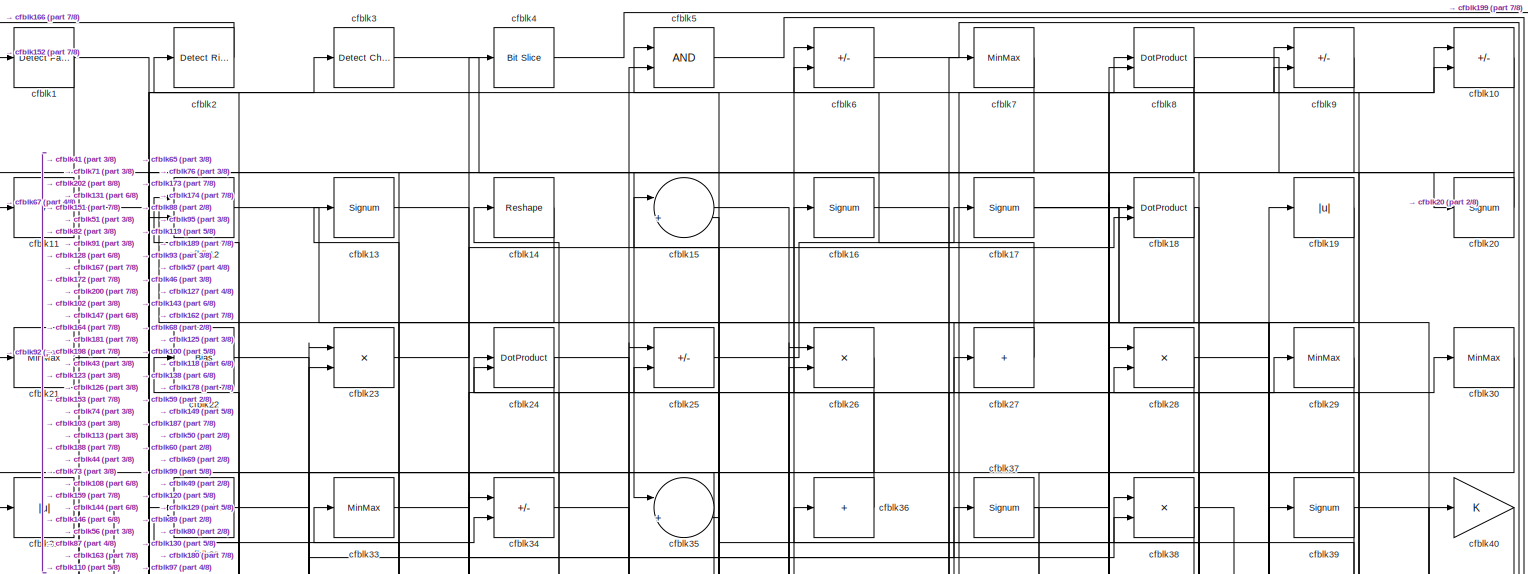
[diagram: root canvas - part 1/8, full width, top band]
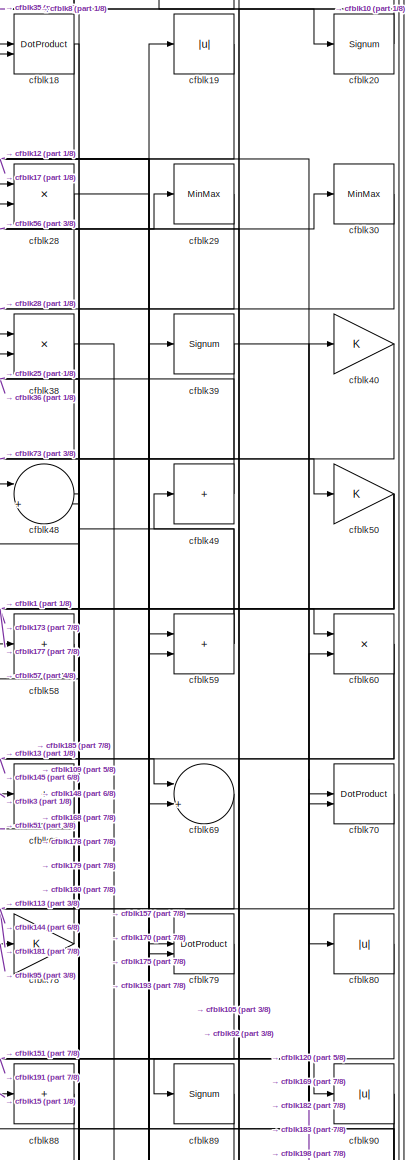
[diagram: root canvas - part 2/8, top right region]
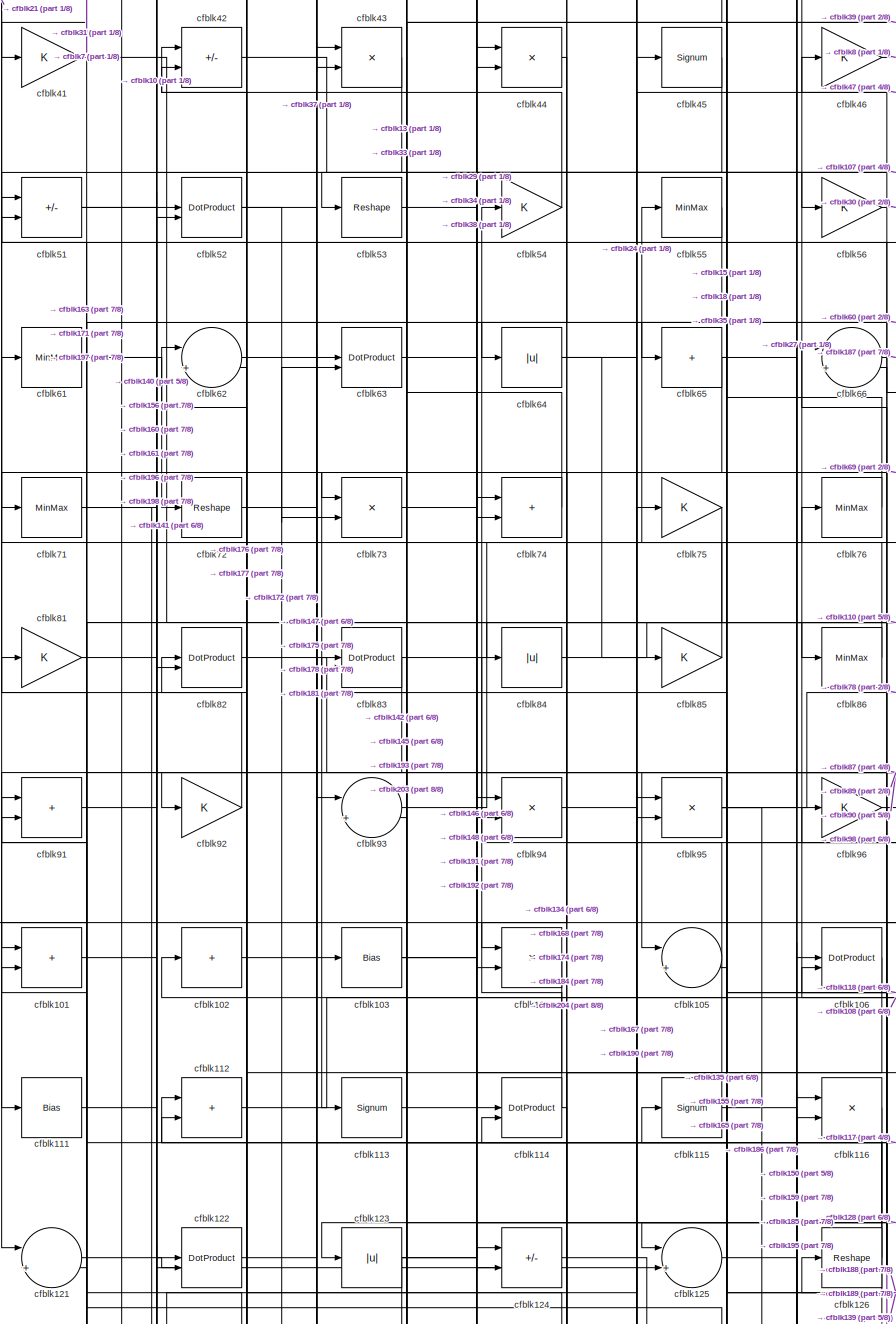
[diagram: root canvas - part 3/8, middle left region]
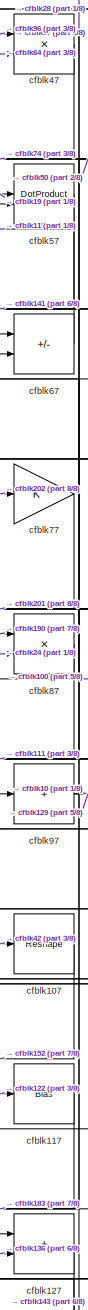
[diagram: root canvas - part 4/8, central region]
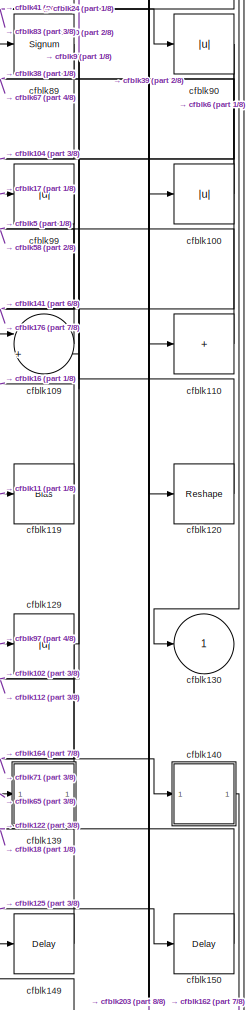
[diagram: root canvas - part 5/8, middle right region]
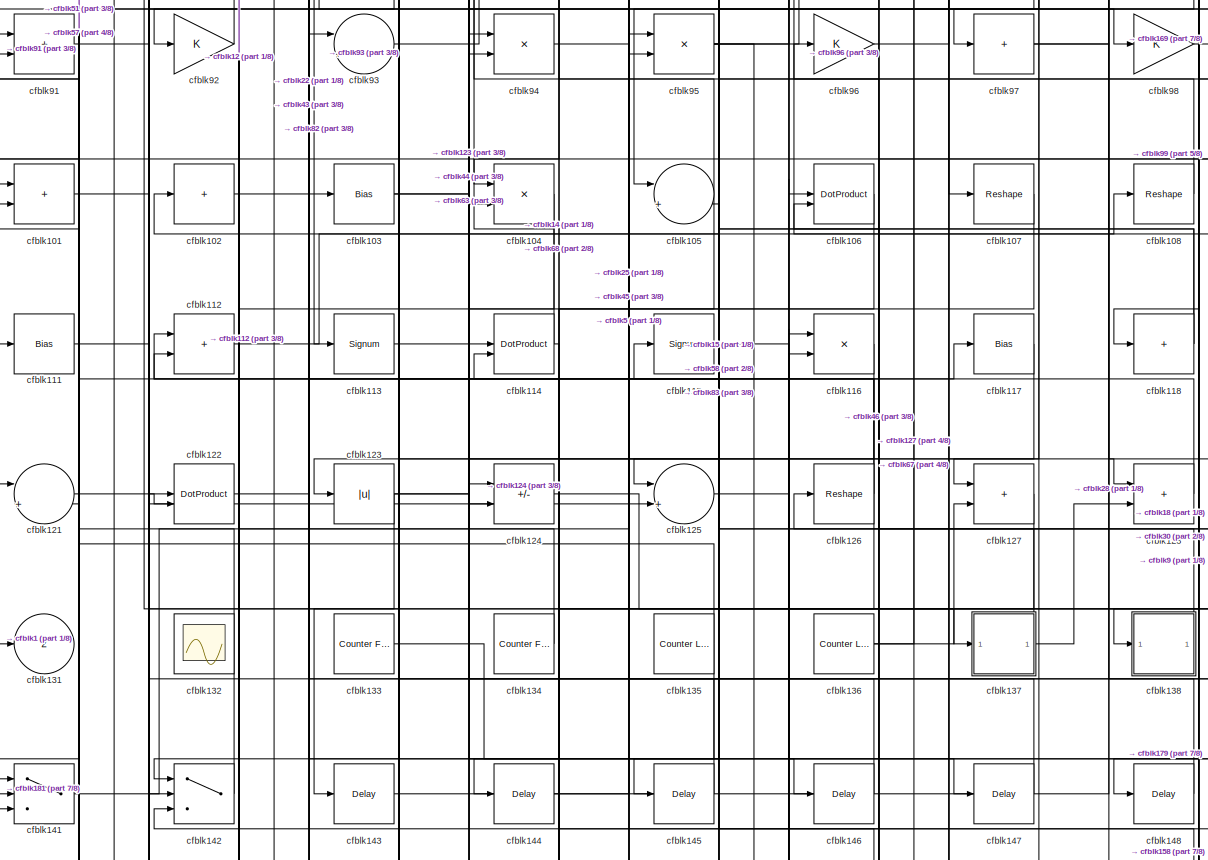
[diagram: root canvas - part 6/8, full width, middle band]
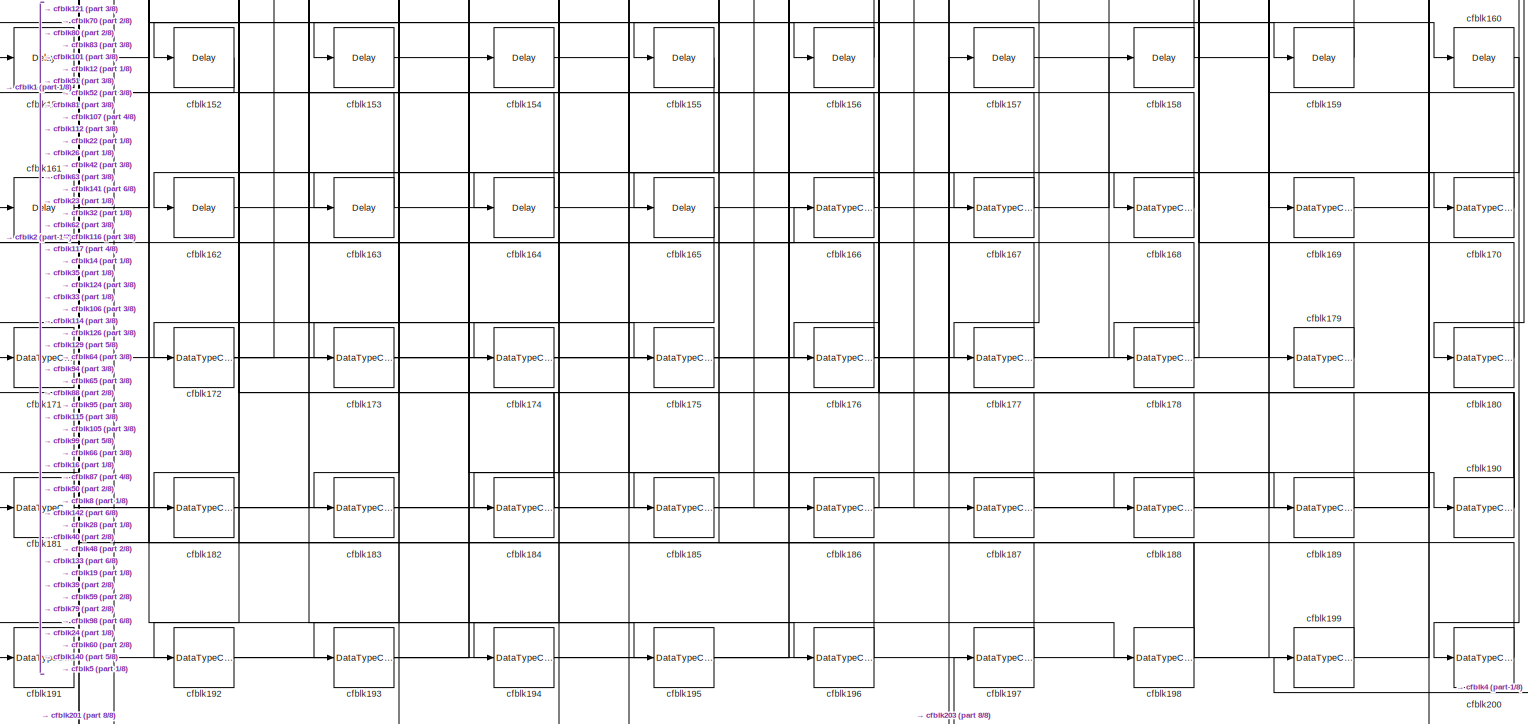
[diagram: root canvas - part 7/8, full width, bottom band]
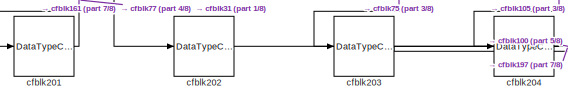
[diagram: root canvas - part 8/8, bottom left region]
MODEL slx_bb9fa285c34d
KIND model
CONFIG AbsTol = auto
CONFIG EnableMultiTasking = off
CONFIG FixedStep = auto
CONFIG MaxStep = auto
CONFIG MinStep = auto
CONFIG RelTol = 1e-3
CONFIG SampleTimeConstraint = Unconstrained
CONFIG SolverName = VariableStepAuto
CONFIG StartTime = 0.0
CONFIG StopTime = 10.0
BLOCK [Reference] cfblk1  REF=hdlsllib/Logic and Bit
Operations/Detect Fall
Nonpositive
  SourceBlock = hdlsllib/Logic and Bit\nOperations/Detect Fall\nNonpositive
  SourceType = Detect Fall Nonpositive
BLOCK [Sum] cfblk10
  IconShape = rectangular
  Inputs = +-
BLOCK [Abs] cfblk100
  SaturateOnIntegerOverflow = off
BLOCK [Sum] cfblk101
  IconShape = rectangular
BLOCK [Sum] cfblk102
  IconShape = rectangular
  Inputs = +
BLOCK [Bias] cfblk103
  Bias = 0.0
  SaturateOnIntegerOverflow = off
BLOCK [Product] cfblk104
  Inputs = */
  RndMeth = Zero
  SaturateOnIntegerOverflow = on
BLOCK [Sum] cfblk105
  Inputs = |++
BLOCK [DotProduct] cfblk106
  OutDataTypeStr = Inherit: Inherit via internal rule
BLOCK [Reshape] cfblk107
BLOCK [Reshape] cfblk108
BLOCK [Sum] cfblk109
  Inputs = |++
BLOCK [Sum] cfblk11
  IconShape = rectangular
  Inputs = +
BLOCK [Sum] cfblk110
  IconShape = rectangular
  Inputs = +
BLOCK [Bias] cfblk111
  Bias = 0.0
  SaturateOnIntegerOverflow = off
BLOCK [Sum] cfblk112
  IconShape = rectangular
BLOCK [Signum] cfblk113
BLOCK [DotProduct] cfblk114
  OutDataTypeStr = Inherit: Inherit via internal rule
BLOCK [Signum] cfblk115
BLOCK [Product] cfblk116
  Inputs = */
  RndMeth = Zero
  SaturateOnIntegerOverflow = on
BLOCK [Bias] cfblk117
  Bias = 0.0
  SaturateOnIntegerOverflow = off
BLOCK [Sum] cfblk118
  IconShape = rectangular
  Inputs = +
BLOCK [Bias] cfblk119
  Bias = 0.0
  SaturateOnIntegerOverflow = off
BLOCK [Product] cfblk12
  Inputs = */
  RndMeth = Zero
  SaturateOnIntegerOverflow = on
BLOCK [Reshape] cfblk120
BLOCK [Sum] cfblk121
  Inputs = |++
BLOCK [DotProduct] cfblk122
  OutDataTypeStr = Inherit: Inherit via internal rule
BLOCK [Abs] cfblk123
  SaturateOnIntegerOverflow = off
BLOCK [Sum] cfblk124
  IconShape = rectangular
  Inputs = +-
BLOCK [Sum] cfblk125
  Inputs = |++
BLOCK [Reshape] cfblk126
BLOCK [Sum] cfblk127
  IconShape = rectangular
BLOCK [Sum] cfblk128
  IconShape = rectangular
BLOCK [Abs] cfblk129
  SaturateOnIntegerOverflow = off
BLOCK [Signum] cfblk13
BLOCK [Outport] cfblk130
  VectorParamsAs1DForOutWhenUnconnected = off
BLOCK [Outport] cfblk131
  Port = 2
  VectorParamsAs1DForOutWhenUnconnected = off
BLOCK [Scope] cfblk132
  Floating = on
  NumInputPorts = 1
  ScopeSpecificationString = Simulink.scopes.TimeScopeBlockCfg('CurrentConfiguration', extmgr.ConfigurationSet(extmgr.Configuration('Core','General UI',true,'FigureColor',[0.156862745098039 0.156862745098039 0.156862745098039]),extmgr.Configuration('Core','Source UI',true),extmgr.Configuration('Sources','WiredSimulink',true,'DataLoggingVariableName','ScopeData1','DataLoggingSaveFormat','StructureWithTime','DataLoggingLimitDat...<+2713ch>
BLOCK [Reference] cfblk133  REF=hdlsllib/Sources/Counter
Free-Running
  SourceBlock = hdlsllib/Sources/Counter\nFree-Running
  SourceType = Counter Free-Running
BLOCK [Reference] cfblk134  REF=hdlsllib/Sources/Counter
Free-Running
  SourceBlock = hdlsllib/Sources/Counter\nFree-Running
  SourceType = Counter Free-Running
BLOCK [Reference] cfblk135  REF=hdlsllib/Sources/Counter
Limited
  SourceBlock = hdlsllib/Sources/Counter\nLimited
  SourceType = Counter Limited
BLOCK [Reference] cfblk136  REF=hdlsllib/Sources/Counter
Limited
  SourceBlock = hdlsllib/Sources/Counter\nLimited
  SourceType = Counter Limited
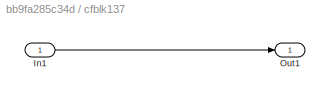
BLOCK [SubSystem] cfblk137
  LibrarySourceBlock = hdlsllib/Ports &\nSubsystems/Subsystem
BLOCK [Inport] cfblk137/In1
BLOCK [Outport] cfblk137/Out1
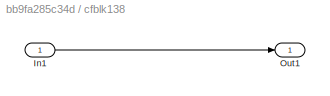
BLOCK [SubSystem] cfblk138
  LibrarySourceBlock = hdlsllib/Ports &\nSubsystems/Subsystem
BLOCK [Inport] cfblk138/In1
BLOCK [Outport] cfblk138/Out1
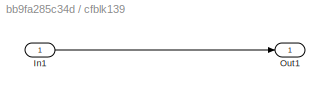
BLOCK [SubSystem] cfblk139
  LibrarySourceBlock = hdlsllib/Ports &\nSubsystems/Subsystem
BLOCK [Inport] cfblk139/In1
BLOCK [Outport] cfblk139/Out1
BLOCK [Reshape] cfblk14
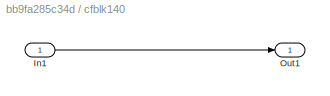
BLOCK [SubSystem] cfblk140
  LibrarySourceBlock = hdlsllib/Ports &\nSubsystems/Subsystem
BLOCK [Inport] cfblk140/In1
BLOCK [Outport] cfblk140/Out1
BLOCK [Switch] cfblk141
  InputSameDT = off
  SaturateOnIntegerOverflow = off
BLOCK [Switch] cfblk142
  InputSameDT = off
  SaturateOnIntegerOverflow = off
BLOCK [Delay] cfblk143
  InputPortMap = u0
  SampleTime = 1
BLOCK [Delay] cfblk144
  InputPortMap = u0
  SampleTime = 1
BLOCK [Delay] cfblk145
  InputPortMap = u0
  SampleTime = 1
BLOCK [Delay] cfblk146
  InputPortMap = u0
  SampleTime = 1
BLOCK [Delay] cfblk147
  InputPortMap = u0
  SampleTime = 1
BLOCK [Delay] cfblk148
  InputPortMap = u0
  SampleTime = 1
BLOCK [Delay] cfblk149
  InputPortMap = u0
  SampleTime = 1
BLOCK [Sum] cfblk15
  Inputs = |++
BLOCK [Delay] cfblk150
  InputPortMap = u0
  SampleTime = 1
BLOCK [Delay] cfblk151
  InputPortMap = u0
  SampleTime = 1
BLOCK [Delay] cfblk152
  InputPortMap = u0
  SampleTime = 1
BLOCK [Delay] cfblk153
  InputPortMap = u0
  SampleTime = 1
BLOCK [Delay] cfblk154
  InputPortMap = u0
  SampleTime = 1
BLOCK [Delay] cfblk155
  InputPortMap = u0
  SampleTime = 1
BLOCK [Delay] cfblk156
  InputPortMap = u0
  SampleTime = 1
BLOCK [Delay] cfblk157
  InputPortMap = u0
  SampleTime = 1
BLOCK [Delay] cfblk158
  InputPortMap = u0
  SampleTime = 1
BLOCK [Delay] cfblk159
  InputPortMap = u0
  SampleTime = 1
BLOCK [Signum] cfblk16
BLOCK [Delay] cfblk160
  InputPortMap = u0
  SampleTime = 1
BLOCK [Delay] cfblk161
  InputPortMap = u0
  SampleTime = 1
BLOCK [Delay] cfblk162
  InputPortMap = u0
  SampleTime = 1
BLOCK [Delay] cfblk163
  InputPortMap = u0
  SampleTime = 1
BLOCK [Delay] cfblk164
  InputPortMap = u0
  SampleTime = 1
BLOCK [Delay] cfblk165
  InputPortMap = u0
  SampleTime = 1
BLOCK [DataTypeConversion] cfblk166
  OutDataTypeStr = uint8
  RndMeth = Floor
  SaturateOnIntegerOverflow = off
BLOCK [DataTypeConversion] cfblk167
  OutDataTypeStr = uint8
  RndMeth = Floor
  SaturateOnIntegerOverflow = off
BLOCK [DataTypeConversion] cfblk168
  OutDataTypeStr = uint8
  RndMeth = Floor
  SaturateOnIntegerOverflow = off
BLOCK [DataTypeConversion] cfblk169
  OutDataTypeStr = uint8
  RndMeth = Floor
  SaturateOnIntegerOverflow = off
BLOCK [Signum] cfblk17
BLOCK [DataTypeConversion] cfblk170
  OutDataTypeStr = uint8
  RndMeth = Floor
  SaturateOnIntegerOverflow = off
BLOCK [DataTypeConversion] cfblk171
  OutDataTypeStr = uint8
  RndMeth = Floor
  SaturateOnIntegerOverflow = off
BLOCK [DataTypeConversion] cfblk172
  RndMeth = Floor
  SaturateOnIntegerOverflow = off
BLOCK [DataTypeConversion] cfblk173
  OutDataTypeStr = uint8
  RndMeth = Floor
  SaturateOnIntegerOverflow = off
BLOCK [DataTypeConversion] cfblk174
  OutDataTypeStr = uint8
  RndMeth = Floor
  SaturateOnIntegerOverflow = off
BLOCK [DataTypeConversion] cfblk175
  OutDataTypeStr = uint8
  RndMeth = Floor
  SaturateOnIntegerOverflow = off
BLOCK [DataTypeConversion] cfblk176
  OutDataTypeStr = uint8
  RndMeth = Floor
  SaturateOnIntegerOverflow = off
BLOCK [DataTypeConversion] cfblk177
  OutDataTypeStr = uint8
  RndMeth = Floor
  SaturateOnIntegerOverflow = off
BLOCK [DataTypeConversion] cfblk178
  RndMeth = Floor
  SaturateOnIntegerOverflow = off
BLOCK [DataTypeConversion] cfblk179
  OutDataTypeStr = uint8
  RndMeth = Floor
  SaturateOnIntegerOverflow = off
BLOCK [DotProduct] cfblk18
  OutDataTypeStr = Inherit: Inherit via internal rule
BLOCK [DataTypeConversion] cfblk180
  OutDataTypeStr = uint8
  RndMeth = Floor
  SaturateOnIntegerOverflow = off
BLOCK [DataTypeConversion] cfblk181
  RndMeth = Floor
  SaturateOnIntegerOverflow = off
BLOCK [DataTypeConversion] cfblk182
  OutDataTypeStr = uint8
  RndMeth = Floor
  SaturateOnIntegerOverflow = off
BLOCK [DataTypeConversion] cfblk183
  OutDataTypeStr = uint8
  RndMeth = Floor
  SaturateOnIntegerOverflow = off
BLOCK [DataTypeConversion] cfblk184
  RndMeth = Floor
  SaturateOnIntegerOverflow = off
BLOCK [DataTypeConversion] cfblk185
  OutDataTypeStr = uint8
  RndMeth = Floor
  SaturateOnIntegerOverflow = off
BLOCK [DataTypeConversion] cfblk186
  OutDataTypeStr = uint8
  RndMeth = Floor
  SaturateOnIntegerOverflow = off
BLOCK [DataTypeConversion] cfblk187
  RndMeth = Floor
  SaturateOnIntegerOverflow = off
BLOCK [DataTypeConversion] cfblk188
  OutDataTypeStr = uint8
  RndMeth = Floor
  SaturateOnIntegerOverflow = off
BLOCK [DataTypeConversion] cfblk189
  OutDataTypeStr = uint8
  RndMeth = Floor
  SaturateOnIntegerOverflow = off
BLOCK [Abs] cfblk19
  SaturateOnIntegerOverflow = off
BLOCK [DataTypeConversion] cfblk190
  RndMeth = Floor
  SaturateOnIntegerOverflow = off
BLOCK [DataTypeConversion] cfblk191
  OutDataTypeStr = uint8
  RndMeth = Floor
  SaturateOnIntegerOverflow = off
BLOCK [DataTypeConversion] cfblk192
  OutDataTypeStr = uint8
  RndMeth = Floor
  SaturateOnIntegerOverflow = off
BLOCK [DataTypeConversion] cfblk193
  OutDataTypeStr = uint8
  RndMeth = Floor
  SaturateOnIntegerOverflow = off
BLOCK [DataTypeConversion] cfblk194
  OutDataTypeStr = uint8
  RndMeth = Floor
  SaturateOnIntegerOverflow = off
BLOCK [DataTypeConversion] cfblk195
  OutDataTypeStr = uint8
  RndMeth = Floor
  SaturateOnIntegerOverflow = off
BLOCK [DataTypeConversion] cfblk196
  OutDataTypeStr = uint8
  RndMeth = Floor
  SaturateOnIntegerOverflow = off
BLOCK [DataTypeConversion] cfblk197
  OutDataTypeStr = uint8
  RndMeth = Floor
  SaturateOnIntegerOverflow = off
BLOCK [DataTypeConversion] cfblk198
  RndMeth = Floor
  SaturateOnIntegerOverflow = off
BLOCK [DataTypeConversion] cfblk199
  OutDataTypeStr = uint8
  RndMeth = Floor
  SaturateOnIntegerOverflow = off
BLOCK [Reference] cfblk2  REF=hdlsllib/Logic and Bit
Operations/Detect Rise
Positive
  SourceBlock = hdlsllib/Logic and Bit\nOperations/Detect Rise\nPositive
  SourceType = Detect Rise Positive
BLOCK [Signum] cfblk20
BLOCK [DataTypeConversion] cfblk200
  OutDataTypeStr = uint8
  RndMeth = Floor
  SaturateOnIntegerOverflow = off
BLOCK [DataTypeConversion] cfblk201
  OutDataTypeStr = uint8
  RndMeth = Floor
  SaturateOnIntegerOverflow = off
BLOCK [DataTypeConversion] cfblk202
  OutDataTypeStr = uint8
  RndMeth = Floor
  SaturateOnIntegerOverflow = off
BLOCK [DataTypeConversion] cfblk203
  RndMeth = Floor
  SaturateOnIntegerOverflow = off
BLOCK [DataTypeConversion] cfblk204
  OutDataTypeStr = uint8
  RndMeth = Floor
  SaturateOnIntegerOverflow = off
BLOCK [MinMax] cfblk21
BLOCK [Bias] cfblk22
  Bias = 0.0
  SaturateOnIntegerOverflow = off
BLOCK [Product] cfblk23
  Inputs = */
  RndMeth = Zero
  SaturateOnIntegerOverflow = on
BLOCK [DotProduct] cfblk24
  OutDataTypeStr = Inherit: Inherit via internal rule
BLOCK [Sum] cfblk25
  IconShape = rectangular
  Inputs = +-
BLOCK [Product] cfblk26
  Inputs = */
  RndMeth = Zero
  SaturateOnIntegerOverflow = on
BLOCK [Sum] cfblk27
  IconShape = rectangular
  Inputs = +
BLOCK [Product] cfblk28
  Inputs = */
  RndMeth = Zero
  SaturateOnIntegerOverflow = on
BLOCK [MinMax] cfblk29
BLOCK [Reference] cfblk3  REF=simulink/Logic and Bit
Operations/Detect
Change
  LibrarySourceBlock = hdlsllib/Logic and Bit\nOperations/Detect\nChange
  SourceBlock = simulink/Logic and Bit\nOperations/Detect\nChange
  SourceType = Detect Change
BLOCK [MinMax] cfblk30
BLOCK [Abs] cfblk31
  SaturateOnIntegerOverflow = off
BLOCK [DotProduct] cfblk32
  OutDataTypeStr = Inherit: Inherit via internal rule
BLOCK [MinMax] cfblk33
BLOCK [Sum] cfblk34
  IconShape = rectangular
  Inputs = +-
BLOCK [Sum] cfblk35
  Inputs = |++
BLOCK [Sum] cfblk36
  IconShape = rectangular
  Inputs = +
BLOCK [Signum] cfblk37
BLOCK [Product] cfblk38
  Inputs = */
  RndMeth = Zero
  SaturateOnIntegerOverflow = on
BLOCK [Signum] cfblk39
BLOCK [Reference] cfblk4  REF=hdlsllib/Logic and Bit
Operations/Bit Slice
  SourceBlock = hdlsllib/Logic and Bit\nOperations/Bit Slice
  SourceType = Bit Slice
BLOCK [Gain] cfblk40
BLOCK [Gain] cfblk41
BLOCK [Sum] cfblk42
  IconShape = rectangular
  Inputs = +-
BLOCK [Product] cfblk43
  Inputs = */
  RndMeth = Zero
  SaturateOnIntegerOverflow = on
BLOCK [Product] cfblk44
  Inputs = */
  RndMeth = Zero
  SaturateOnIntegerOverflow = on
BLOCK [Signum] cfblk45
BLOCK [Gain] cfblk46
BLOCK [Product] cfblk47
  Inputs = */
  RndMeth = Zero
  SaturateOnIntegerOverflow = on
BLOCK [Sum] cfblk48
  Inputs = |++
BLOCK [Sum] cfblk49
  IconShape = rectangular
  Inputs = +
BLOCK [Logic] cfblk5
  AllPortsSameDT = off
  OutDataTypeStr = boolean
BLOCK [Gain] cfblk50
BLOCK [Sum] cfblk51
  IconShape = rectangular
  Inputs = +-
BLOCK [DotProduct] cfblk52
  OutDataTypeStr = Inherit: Inherit via internal rule
BLOCK [Reshape] cfblk53
BLOCK [Gain] cfblk54
BLOCK [MinMax] cfblk55
BLOCK [Gain] cfblk56
BLOCK [DotProduct] cfblk57
  OutDataTypeStr = Inherit: Inherit via internal rule
BLOCK [Sum] cfblk58
  IconShape = rectangular
  Inputs = +
BLOCK [Sum] cfblk59
  IconShape = rectangular
BLOCK [Sum] cfblk6
  IconShape = rectangular
  Inputs = +-
BLOCK [Product] cfblk60
  Inputs = */
  RndMeth = Zero
  SaturateOnIntegerOverflow = on
BLOCK [MinMax] cfblk61
BLOCK [Sum] cfblk62
  Inputs = |++
BLOCK [DotProduct] cfblk63
  OutDataTypeStr = Inherit: Inherit via internal rule
BLOCK [Abs] cfblk64
  SaturateOnIntegerOverflow = off
BLOCK [Sum] cfblk65
  IconShape = rectangular
  Inputs = +
BLOCK [Sum] cfblk66
  Inputs = |++
BLOCK [Sum] cfblk67
  IconShape = rectangular
  Inputs = +-
BLOCK [Sum] cfblk68
  IconShape = rectangular
  Inputs = +
BLOCK [Sum] cfblk69
  Inputs = |++
BLOCK [MinMax] cfblk7
BLOCK [DotProduct] cfblk70
  OutDataTypeStr = Inherit: Inherit via internal rule
BLOCK [MinMax] cfblk71
BLOCK [Reshape] cfblk72
BLOCK [Product] cfblk73
  Inputs = */
  RndMeth = Zero
  SaturateOnIntegerOverflow = on
BLOCK [Sum] cfblk74
  IconShape = rectangular
BLOCK [Gain] cfblk75
BLOCK [MinMax] cfblk76
BLOCK [Gain] cfblk77
BLOCK [Gain] cfblk78
BLOCK [DotProduct] cfblk79
  OutDataTypeStr = Inherit: Inherit via internal rule
BLOCK [DotProduct] cfblk8
  OutDataTypeStr = Inherit: Inherit via internal rule
BLOCK [Abs] cfblk80
  SaturateOnIntegerOverflow = off
BLOCK [Gain] cfblk81
BLOCK [DotProduct] cfblk82
  OutDataTypeStr = Inherit: Inherit via internal rule
BLOCK [DotProduct] cfblk83
  OutDataTypeStr = Inherit: Inherit via internal rule
BLOCK [Abs] cfblk84
  SaturateOnIntegerOverflow = off
BLOCK [Gain] cfblk85
BLOCK [MinMax] cfblk86
BLOCK [Product] cfblk87
  Inputs = */
  RndMeth = Zero
  SaturateOnIntegerOverflow = on
BLOCK [Sum] cfblk88
  IconShape = rectangular
  Inputs = +
BLOCK [Signum] cfblk89
BLOCK [Sum] cfblk9
  IconShape = rectangular
  Inputs = +-
BLOCK [Abs] cfblk90
  SaturateOnIntegerOverflow = off
BLOCK [Sum] cfblk91
  IconShape = rectangular
BLOCK [Gain] cfblk92
BLOCK [Sum] cfblk93
  Inputs = |++
BLOCK [Product] cfblk94
  Inputs = */
  RndMeth = Zero
  SaturateOnIntegerOverflow = on
BLOCK [Product] cfblk95
  Inputs = */
  RndMeth = Zero
  SaturateOnIntegerOverflow = on
BLOCK [Gain] cfblk96
BLOCK [Sum] cfblk97
  IconShape = rectangular
  Inputs = +
BLOCK [Gain] cfblk98
BLOCK [Abs] cfblk99
  SaturateOnIntegerOverflow = off
NET cfblk100:1 -> cfblk109:2, cfblk38:1, cfblk67:1
LINE cfblk101:1 -> cfblk156:1
LINE cfblk102:1 -> cfblk37:1
NET cfblk103:1 -> cfblk18:2, cfblk34:1
LINE cfblk104:1 -> cfblk124:2
NET cfblk105:1 -> cfblk204:1, cfblk84:1
LINE cfblk106:1 -> cfblk184:1
LINE cfblk107:1 -> cfblk152:1
LINE cfblk108:1 -> cfblk14:1
LINE cfblk109:1 -> cfblk58:1
LINE cfblk10:1 -> cfblk89:1
LINE cfblk110:1 -> cfblk5:1
LINE cfblk111:1 -> cfblk76:1
LINE cfblk112:1 -> cfblk108:1
LINE cfblk113:1 -> cfblk38:2
NET cfblk114:1 -> cfblk174:1, cfblk54:1
LINE cfblk115:1 -> cfblk159:1
LINE cfblk116:1 -> cfblk193:1
LINE cfblk117:1 -> cfblk183:1
NET cfblk118:1 -> cfblk15:1, cfblk83:1
LINE cfblk119:1 -> cfblk16:1
LINE cfblk11:1 -> cfblk119:1
LINE cfblk120:1 -> cfblk24:1
LINE cfblk121:1 -> cfblk122:2
LINE cfblk122:1 -> cfblk117:1
NET cfblk123:1 -> cfblk128:1, cfblk142:2, cfblk74:1
LINE cfblk124:1 -> cfblk137:1
LINE cfblk125:1 -> cfblk150:1
NET cfblk126:1 -> cfblk194:1, cfblk33:1, cfblk91:1
LINE cfblk127:1 -> cfblk143:1
LINE cfblk128:1 -> cfblk12:1
NET cfblk129:1 -> cfblk164:1, cfblk9:2
LINE cfblk12:1 -> cfblk80:1
LINE cfblk133:1 -> cfblk179:1
LINE cfblk134:1 -> cfblk82:1
NET cfblk135:1 -> cfblk142:1, cfblk91:2
NET cfblk136:1 -> cfblk127:2, cfblk67:2
LINE cfblk137/In1:1 -> cfblk137/Out1:1
NET cfblk137:1 -> cfblk128:2, cfblk96:1
LINE cfblk138/In1:1 -> cfblk138/Out1:1
LINE cfblk138:1 -> cfblk46:1
LINE cfblk139/In1:1 -> cfblk139/Out1:1
LINE cfblk139:1 -> cfblk102:1
LINE cfblk13:1 -> cfblk69:1
LINE cfblk140/In1:1 -> cfblk140/Out1:1
LINE cfblk140:1 -> cfblk162:1
LINE cfblk141:1 -> cfblk45:1
LINE cfblk142:1 -> cfblk51:1
LINE cfblk143:1 -> cfblk28:1
LINE cfblk144:1 -> cfblk5:2
LINE cfblk145:1 -> cfblk93:2
LINE cfblk146:1 -> cfblk25:1
LINE cfblk147:1 -> cfblk43:1
LINE cfblk148:1 -> cfblk44:1
LINE cfblk149:1 -> cfblk18:1
LINE cfblk14:1 -> cfblk153:1
LINE cfblk150:1 -> cfblk122:1
LINE cfblk151:1 -> cfblk12:2
LINE cfblk152:1 -> cfblk1:1
LINE cfblk153:1 -> cfblk195:1
LINE cfblk154:1 -> cfblk170:1
LINE cfblk155:1 -> cfblk182:1
LINE cfblk156:1 -> cfblk105:2
LINE cfblk157:1 -> cfblk79:1
LINE cfblk158:1 -> cfblk142:3
LINE cfblk159:1 -> cfblk24:2
LINE cfblk15:1 -> cfblk88:1
LINE cfblk160:1 -> cfblk200:1
LINE cfblk161:1 -> cfblk52:2
LINE cfblk162:1 -> cfblk8:2
LINE cfblk163:1 -> cfblk121:2
LINE cfblk164:1 -> cfblk23:1
LINE cfblk165:1 -> cfblk192:1
LINE cfblk166:1 -> cfblk22:1
LINE cfblk167:1 -> cfblk2:1
LINE cfblk168:1 -> cfblk114:2
LINE cfblk169:1 -> cfblk40:1
LINE cfblk16:1 -> cfblk189:1
LINE cfblk170:1 -> cfblk59:1
LINE cfblk171:1 -> cfblk154:1
NET cfblk172:1 -> cfblk157:1, cfblk158:1, cfblk63:2
LINE cfblk173:1 -> cfblk26:1
LINE cfblk174:1 -> cfblk26:2
LINE cfblk175:1 -> cfblk79:2
LINE cfblk176:1 -> cfblk62:1
LINE cfblk177:1 -> cfblk62:2
NET cfblk178:1 -> cfblk28:2, cfblk63:1
LINE cfblk179:1 -> cfblk48:1
NET cfblk17:1 -> cfblk50:1, cfblk69:2, cfblk99:1
LINE cfblk180:1 -> cfblk48:2
NET cfblk181:1 -> cfblk141:2, cfblk23:2, cfblk95:1
LINE cfblk182:1 -> cfblk70:1
LINE cfblk183:1 -> cfblk70:2
NET cfblk184:1 -> cfblk124:1, cfblk42:2
LINE cfblk185:1 -> cfblk106:1
LINE cfblk186:1 -> cfblk106:2
NET cfblk187:1 -> cfblk112:2, cfblk19:1
LINE cfblk188:1 -> cfblk66:1
LINE cfblk189:1 -> cfblk66:2
NET cfblk18:1 -> cfblk118:1, cfblk65:1
NET cfblk190:1 -> cfblk126:1, cfblk83:2, cfblk87:1
LINE cfblk191:1 -> cfblk94:1
LINE cfblk192:1 -> cfblk94:2
LINE cfblk193:1 -> cfblk39:1
LINE cfblk194:1 -> cfblk116:1
LINE cfblk195:1 -> cfblk116:2
LINE cfblk196:1 -> cfblk115:1
LINE cfblk197:1 -> cfblk81:1
NET cfblk198:1 -> cfblk101:2, cfblk52:1, cfblk60:2
LINE cfblk199:1 -> cfblk32:1
LINE cfblk19:1 -> cfblk57:1
NET cfblk1:1 -> cfblk131:1, cfblk59:2
LINE cfblk200:1 -> cfblk32:2
LINE cfblk201:1 -> cfblk161:1
LINE cfblk202:1 -> cfblk77:1
NET cfblk203:1 -> cfblk100:1, cfblk197:1
LINE cfblk204:1 -> cfblk75:1
LINE cfblk20:1 -> cfblk35:1
LINE cfblk21:1 -> cfblk3:1
LINE cfblk22:1 -> cfblk147:1
LINE cfblk23:1 -> cfblk4:1
NET cfblk24:1 -> cfblk43:2, cfblk87:2
LINE cfblk25:1 -> cfblk17:1
LINE cfblk26:1 -> cfblk172:1
LINE cfblk27:1 -> cfblk6:2
NET cfblk28:1 -> cfblk127:1, cfblk60:1
LINE cfblk29:1 -> cfblk44:2
LINE cfblk2:1 -> cfblk166:1
LINE cfblk30:1 -> cfblk148:1
NET cfblk31:1 -> cfblk202:1, cfblk71:1
LINE cfblk32:1 -> cfblk198:1
LINE cfblk33:1 -> cfblk188:1
LINE cfblk34:1 -> cfblk56:1
NET cfblk35:1 -> cfblk163:1, cfblk31:1
LINE cfblk36:1 -> cfblk6:1
NET cfblk37:1 -> cfblk97:1, cfblk9:1
NET cfblk38:1 -> cfblk125:1, cfblk149:1
NET cfblk39:1 -> cfblk120:1, cfblk73:1
LINE cfblk3:1 -> cfblk68:1
LINE cfblk40:1 -> cfblk168:1
LINE cfblk41:1 -> cfblk110:1
LINE cfblk42:1 -> cfblk107:1
LINE cfblk43:1 -> cfblk121:1
LINE cfblk44:1 -> cfblk64:1
LINE cfblk45:1 -> cfblk53:1
LINE cfblk46:1 -> cfblk8:1
LINE cfblk47:1 -> cfblk74:2
LINE cfblk48:1 -> cfblk178:1
LINE cfblk49:1 -> cfblk25:2
LINE cfblk4:1 -> cfblk199:1
NET cfblk50:1 -> cfblk173:1, cfblk177:1, cfblk57:2
NET cfblk51:1 -> cfblk10:2, cfblk160:1
NET cfblk52:1 -> cfblk73:2, cfblk93:1
LINE cfblk53:1 -> cfblk114:1
LINE cfblk54:1 -> cfblk42:1
LINE cfblk55:1 -> cfblk101:1
LINE cfblk56:1 -> cfblk30:1
LINE cfblk57:1 -> cfblk141:1
LINE cfblk58:1 -> cfblk145:1
NET cfblk59:1 -> cfblk36:1, cfblk49:1
LINE cfblk5:1 -> cfblk180:1
NET cfblk60:1 -> cfblk109:1, cfblk92:1
NET cfblk61:1 -> cfblk72:1, cfblk95:2
LINE cfblk62:1 -> cfblk175:1
LINE cfblk63:1 -> cfblk146:1
NET cfblk64:1 -> cfblk167:1, cfblk47:2, cfblk85:1
NET cfblk65:1 -> cfblk104:1, cfblk139:1, cfblk155:1, cfblk15:2
LINE cfblk66:1 -> cfblk187:1
LINE cfblk67:1 -> cfblk11:1
LINE cfblk68:1 -> cfblk144:1
LINE cfblk69:1 -> cfblk113:1
LINE cfblk6:1 -> cfblk130:1
LINE cfblk70:1 -> cfblk181:1
NET cfblk71:1 -> cfblk125:2, cfblk140:1
LINE cfblk72:1 -> cfblk103:1
LINE cfblk73:1 -> cfblk29:1
LINE cfblk74:1 -> cfblk13:1
LINE cfblk75:1 -> cfblk203:1
LINE cfblk76:1 -> cfblk35:2
LINE cfblk77:1 -> cfblk201:1
LINE cfblk78:1 -> cfblk51:2
LINE cfblk79:1 -> cfblk191:1
LINE cfblk7:1 -> cfblk41:1
LINE cfblk80:1 -> cfblk151:1
LINE cfblk81:1 -> cfblk196:1
LINE cfblk82:1 -> cfblk98:1
NET cfblk83:1 -> cfblk171:1, cfblk90:1
LINE cfblk84:1 -> cfblk86:1
LINE cfblk85:1 -> cfblk61:1
LINE cfblk86:1 -> cfblk55:1
LINE cfblk87:1 -> cfblk111:1
LINE cfblk88:1 -> cfblk185:1
LINE cfblk89:1 -> cfblk105:1
NET cfblk8:1 -> cfblk123:1, cfblk20:1, cfblk82:2
NET cfblk90:1 -> cfblk104:2, cfblk112:1
LINE cfblk91:1 -> cfblk34:2
LINE cfblk92:1 -> cfblk21:1
LINE cfblk93:1 -> cfblk7:1
LINE cfblk94:1 -> cfblk190:1
NET cfblk95:1 -> cfblk165:1, cfblk186:1, cfblk27:1, cfblk78:1
LINE cfblk96:1 -> cfblk47:1
NET cfblk97:1 -> cfblk10:1, cfblk129:1
LINE cfblk98:1 -> cfblk169:1
NET cfblk99:1 -> cfblk141:3, cfblk176:1
LINE cfblk9:1 -> cfblk138:1
note: NET lines group one-source signal fan-out (src -> all destinations, sorted); 1:1 wires keep LINE
